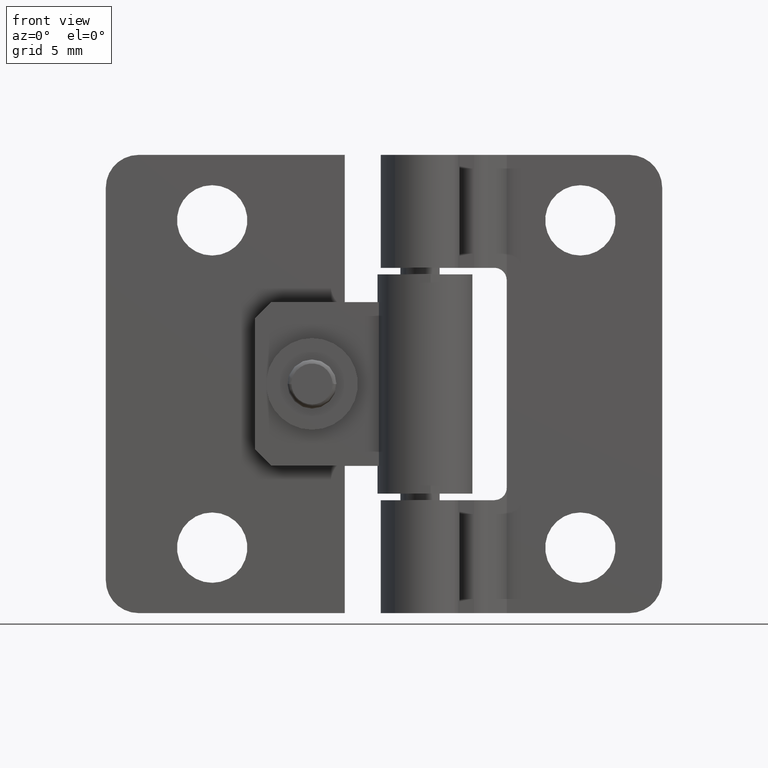
[diagram: clean part render]
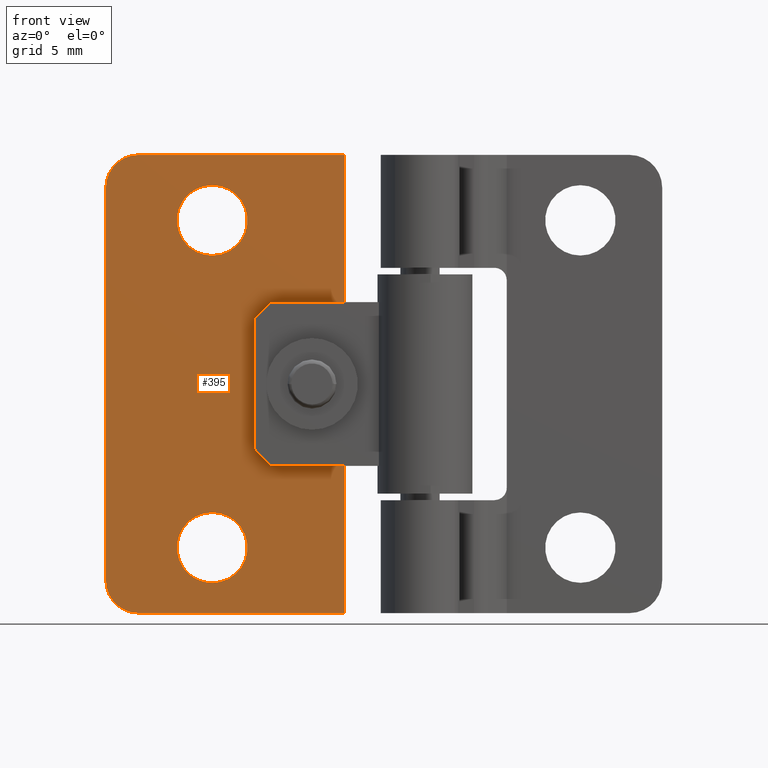
[diagram: same view with one face highlighted and labeled with its STEP entity id]
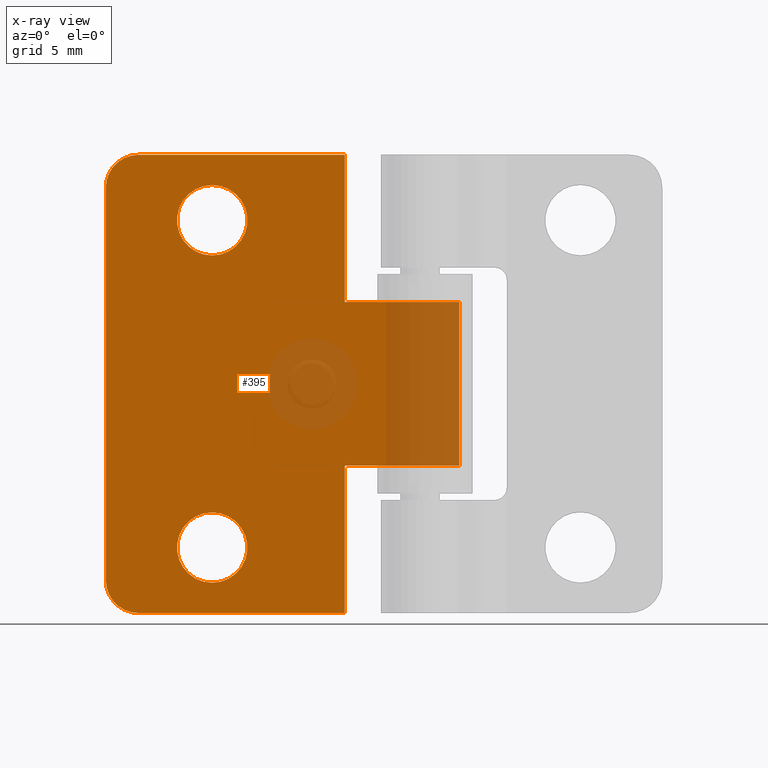
[diagram: x-ray of the same camera — body ghosted, the highlighted face saturated]
A machine part, front view. The second image highlights one B-rep face of the part: STEP entity #395.
The next image is the same camera in x-ray: the body ghosted, the highlighted face saturated — about 15% of this face is hidden behind the body in this view.
In plain terms, the highlighted planar face has unit normal (0, -1, 0).
Its self-contained STEP definition (entity closure, byte-faithful):
#395=ADVANCED_FACE('',(#1012,#1013,#1014),#1011,.T.);
#1011=PLANE('',#2232);
#1012=FACE_OUTER_BOUND('',#2233,.T.);
#1013=FACE_BOUND('',#2234,.T.);
#1014=FACE_BOUND('',#2235,.T.);
#2229=CARTESIAN_POINT('',(-2.16600000000E+01,3.10000000000E+00,3.08000000000E+01));
#2230=DIRECTION('',(0.00000000000E+00,-1.00000000000E+00,0.00000000000E+00));
#2231=DIRECTION('',(0.00000000000E+00,0.00000000000E+00,-1.00000000000E+00));
#2232=AXIS2_PLACEMENT_3D('',#2229,#2230,#2231);
#2233=EDGE_LOOP('',(#2945,#2946,#2947,#2948,#2949,#2950,#2951,#2952,#2953,#2954,#2955,#2956));
#2234=EDGE_LOOP('',(#2957,#2958,#2959));
#2235=EDGE_LOOP('',(#2960,#2961,#2962));
#2945=ORIENTED_EDGE('',*,*,#3566,.F.);
#2946=ORIENTED_EDGE('',*,*,#3562,.F.);
#2947=ORIENTED_EDGE('',*,*,#3599,.T.);
#2948=ORIENTED_EDGE('',*,*,#3600,.F.);
#2949=ORIENTED_EDGE('',*,*,#3601,.F.);
#2950=ORIENTED_EDGE('',*,*,#3573,.F.);
#2951=ORIENTED_EDGE('',*,*,#3569,.F.);
#2952=ORIENTED_EDGE('',*,*,#3584,.F.);
#2953=ORIENTED_EDGE('',*,*,#3578,.T.);
#2954=ORIENTED_EDGE('',*,*,#3589,.F.);
#2955=ORIENTED_EDGE('',*,*,#3582,.T.);
#2956=ORIENTED_EDGE('',*,*,#3586,.T.);
#2957=ORIENTED_EDGE('',*,*,#3602,.F.);
#2958=ORIENTED_EDGE('',*,*,#3603,.F.);
#2959=ORIENTED_EDGE('',*,*,#3604,.F.);
#2960=ORIENTED_EDGE('',*,*,#3605,.F.);
#2961=ORIENTED_EDGE('',*,*,#3606,.F.);
#2962=ORIENTED_EDGE('',*,*,#3607,.F.);
#3562=EDGE_CURVE('',#4659,#4660,#4661,.T.);
#3566=EDGE_CURVE('',#4660,#4687,#4688,.T.);
#3569=EDGE_CURVE('',#4707,#4708,#4709,.T.);
#3573=EDGE_CURVE('',#4708,#4735,#4736,.T.);
#3578=EDGE_CURVE('',#4770,#4763,#4771,.T.);
#3582=EDGE_CURVE('',#4798,#4791,#4799,.T.);
#3584=EDGE_CURVE('',#4770,#4707,#4811,.T.);
#3586=EDGE_CURVE('',#4791,#4687,#4823,.T.);
#3589=EDGE_CURVE('',#4798,#4763,#4841,.T.);
#3599=EDGE_CURVE('',#4659,#4907,#4908,.T.);
#3600=EDGE_CURVE('',#4914,#4907,#4915,.T.);
#3601=EDGE_CURVE('',#4735,#4914,#4921,.T.);
#3602=EDGE_CURVE('',#4927,#4928,#4929,.T.);
#3603=EDGE_CURVE('',#4935,#4927,#4936,.T.);
#3604=EDGE_CURVE('',#4928,#4935,#4942,.T.);
#3605=EDGE_CURVE('',#4948,#4949,#4950,.T.);
#3606=EDGE_CURVE('',#4956,#4948,#4957,.T.);
#3607=EDGE_CURVE('',#4949,#4956,#4963,.T.);
#4659=VERTEX_POINT('',#6954);
#4660=VERTEX_POINT('',#6955);
#4661=LINE('',#6956,#6957);
#4687=VERTEX_POINT('',#6970);
#4688=LINE('',#6971,#6972);
#4707=VERTEX_POINT('',#6981);
#4708=VERTEX_POINT('',#6982);
#4709=LINE('',#6983,#6984);
#4735=VERTEX_POINT('',#6997);
#4736=LINE('',#6998,#6999);
#4763=VERTEX_POINT('',#7014);
#4770=VERTEX_POINT('',#7018);
#4771=CIRCLE('',#7022,2.00000000000E+00);
#4791=VERTEX_POINT('',#7032);
#4798=VERTEX_POINT('',#7036);
#4799=CIRCLE('',#7040,2.00000000000E+00);
#4811=LINE('',#7044,#7045);
#4823=LINE('',#7050,#7051);
#4841=LINE('',#7059,#7060);
#4907=VERTEX_POINT('',#7101);
#4908=LINE('',#7102,#7103);
#4914=VERTEX_POINT('',#7105);
#4915=LINE('',#7106,#7107);
#4921=LINE('',#7109,#7110);
#4927=VERTEX_POINT('',#7112);
#4928=VERTEX_POINT('',#7113);
#4929=CIRCLE('',#7117,2.15000000000E+00);
#4935=VERTEX_POINT('',#7118);
#4936=CIRCLE('',#7122,2.15000000000E+00);
#4942=CIRCLE('',#7126,2.15000000000E+00);
#4948=VERTEX_POINT('',#7127);
#4949=VERTEX_POINT('',#7128);
#4950=CIRCLE('',#7132,2.15000000000E+00);
#4956=VERTEX_POINT('',#7133);
#4957=CIRCLE('',#7137,2.15000000000E+00);
#4963=CIRCLE('',#7141,2.15000000000E+00);
#6954=CARTESIAN_POINT('',(-2.90000000000E+00,3.10000000000E+00,9.00000000000E+00));
#6955=CARTESIAN_POINT('',(-4.90000000000E+00,3.10000000000E+00,9.00000000000E+00));
#6956=CARTESIAN_POINT('',(-2.90000000000E+00,3.10000000000E+00,9.00000000000E+00));
#6957=VECTOR('',#6958,2.00000000000E+00);
#6958=DIRECTION('',(-1.00000000000E+00,0.00000000000E+00,0.00000000000E+00));
#6970=CARTESIAN_POINT('',(-4.90000000000E+00,3.10000000000E+00,0.00000000000E+00));
#6971=CARTESIAN_POINT('',(-4.90000000000E+00,3.10000000000E+00,9.00000000000E+00));
#6972=VECTOR('',#6973,9.00000000000E+00);
#6973=DIRECTION('',(0.00000000000E+00,0.00000000000E+00,-1.00000000000E+00));
#6981=CARTESIAN_POINT('',(-4.90000000000E+00,3.10000000000E+00,2.80000000000E+01));
#6982=CARTESIAN_POINT('',(-4.90000000000E+00,3.10000000000E+00,1.90000000000E+01));
#6983=CARTESIAN_POINT('',(-4.90000000000E+00,3.10000000000E+00,2.80000000000E+01));
#6984=VECTOR('',#6985,9.00000000000E+00);
#6985=DIRECTION('',(0.00000000000E+00,0.00000000000E+00,-1.00000000000E+00));
#6997=CARTESIAN_POINT('',(-2.90000000000E+00,3.10000000000E+00,1.90000000000E+01));
#6998=CARTESIAN_POINT('',(-4.90000000000E+00,3.10000000000E+00,1.90000000000E+01));
#6999=VECTOR('',#7000,2.00000000000E+00);
#7000=DIRECTION('',(1.00000000000E+00,0.00000000000E+00,0.00000000000E+00));
#7014=CARTESIAN_POINT('',(-1.95000000000E+01,3.10000000000E+00,2.60000000000E+01));
#7018=CARTESIAN_POINT('',(-1.75000000000E+01,3.10000000000E+00,2.80000000000E+01));
#7019=CARTESIAN_POINT('',(-1.75000000000E+01,3.10000000000E+00,2.60000000000E+01));
#7020=DIRECTION('',(3.92523114671E-16,-1.00000000000E+00,-1.39452223874E-30));
#7021=DIRECTION('',(-3.55271367880E-15,-0.00000000000E+00,-1.00000000000E+00));
#7022=AXIS2_PLACEMENT_3D('',#7019,#7020,#7021);
#7032=CARTESIAN_POINT('',(-1.75000000000E+01,3.10000000000E+00,0.00000000000E+00));
#7036=CARTESIAN_POINT('',(-1.95000000000E+01,3.10000000000E+00,2.00000000000E+00));
#7037=CARTESIAN_POINT('',(-1.75000000000E+01,3.10000000000E+00,2.00000000000E+00));
#7038=DIRECTION('',(1.48167987866E-30,-1.00000000000E+00,3.92523114671E-16));
#7039=DIRECTION('',(1.00000000000E+00,-0.00000000000E+00,-3.77475828373E-15));
#7040=AXIS2_PLACEMENT_3D('',#7037,#7038,#7039);
#7044=CARTESIAN_POINT('',(-1.75000000000E+01,3.10000000000E+00,2.80000000000E+01));
#7045=VECTOR('',#7046,1.26000000000E+01);
#7046=DIRECTION('',(1.00000000000E+00,0.00000000000E+00,0.00000000000E+00));
#7050=CARTESIAN_POINT('',(-1.75000000000E+01,3.10000000000E+00,0.00000000000E+00));
#7051=VECTOR('',#7052,1.26000000000E+01);
#7052=DIRECTION('',(1.00000000000E+00,0.00000000000E+00,0.00000000000E+00));
#7059=CARTESIAN_POINT('',(-1.95000000000E+01,3.10000000000E+00,2.00000000000E+00));
#7060=VECTOR('',#7061,2.40000000000E+01);
#7061=DIRECTION('',(0.00000000000E+00,0.00000000000E+00,1.00000000000E+00));
#7101=CARTESIAN_POINT('',(2.10000000000E+00,3.10000000000E+00,9.00000000000E+00));
#7102=CARTESIAN_POINT('',(-2.90000000000E+00,3.10000000000E+00,9.00000000000E+00));
#7103=VECTOR('',#7104,5.00000000000E+00);
#7104=DIRECTION('',(1.00000000000E+00,0.00000000000E+00,0.00000000000E+00));
#7105=CARTESIAN_POINT('',(2.10000000000E+00,3.10000000000E+00,1.90000000000E+01));
#7106=CARTESIAN_POINT('',(2.10000000000E+00,3.10000000000E+00,1.90000000000E+01));
#7107=VECTOR('',#7108,1.00000000000E+01);
#7108=DIRECTION('',(0.00000000000E+00,0.00000000000E+00,-1.00000000000E+00));
#7109=CARTESIAN_POINT('',(-2.90000000000E+00,3.10000000000E+00,1.90000000000E+01));
#7110=VECTOR('',#7111,5.00000000000E+00);
#7111=DIRECTION('',(1.00000000000E+00,0.00000000000E+00,0.00000000000E+00));
#7112=CARTESIAN_POINT('',(-1.08650294255E+01,3.10000000000E+00,2.37462271762E+01));
#7113=CARTESIAN_POINT('',(-1.30000000000E+01,3.10000000000E+00,2.61500000000E+01));
#7114=CARTESIAN_POINT('',(-1.30000000000E+01,3.10000000000E+00,2.40000000000E+01));
#7115=DIRECTION('',(-1.31705028936E-15,-1.00000000000E+00,-9.33028184860E-15));
#7116=DIRECTION('',(2.62012633812E-14,-9.33028184860E-15,1.00000000000E+00));
#7117=AXIS2_PLACEMENT_3D('',#7114,#7115,#7116);
#7118=CARTESIAN_POINT('',(-1.51349265884E+01,3.10000000000E+00,2.42541426016E+01));
#7119=CARTESIAN_POINT('',(-1.30000000000E+01,3.10000000000E+00,2.40000000000E+01));
#7120=DIRECTION('',(-1.31705028936E-15,-1.00000000000E+00,-9.33028184860E-15));
#7121=DIRECTION('',(2.62012633812E-14,-9.33028184860E-15,1.00000000000E+00));
#7122=AXIS2_PLACEMENT_3D('',#7119,#7120,#7121);
#7123=CARTESIAN_POINT('',(-1.30000000000E+01,3.10000000000E+00,2.40000000000E+01));
#7124=DIRECTION('',(-1.31705028936E-15,-1.00000000000E+00,-9.33028184860E-15));
#7125=DIRECTION('',(2.62012633812E-14,-9.33028184860E-15,1.00000000000E+00));
#7126=AXIS2_PLACEMENT_3D('',#7123,#7124,#7125);
#7127=CARTESIAN_POINT('',(-1.08650294255E+01,3.10000000000E+00,3.74622717623E+00));
#7128=CARTESIAN_POINT('',(-1.30000000000E+01,3.10000000000E+00,6.15000000000E+00));
#7129=CARTESIAN_POINT('',(-1.30000000000E+01,3.10000000000E+00,4.00000000000E+00));
#7130=DIRECTION('',(3.81030245150E-16,-1.00000000000E+00,4.95551994375E-15));
#7131=DIRECTION('',(2.27179386414E-14,4.95551994375E-15,1.00000000000E+00));
#7132=AXIS2_PLACEMENT_3D('',#7129,#7130,#7131);
#7133=CARTESIAN_POINT('',(-1.51349265884E+01,3.10000000000E+00,4.25414260158E+00));
#7134=CARTESIAN_POINT('',(-1.30000000000E+01,3.10000000000E+00,4.00000000000E+00));
#7135=DIRECTION('',(3.81030245150E-16,-1.00000000000E+00,4.95551994375E-15));
#7136=DIRECTION('',(2.27179386414E-14,4.95551994375E-15,1.00000000000E+00));
#7137=AXIS2_PLACEMENT_3D('',#7134,#7135,#7136);
#7138=CARTESIAN_POINT('',(-1.30000000000E+01,3.10000000000E+00,4.00000000000E+00));
#7139=DIRECTION('',(3.81030245150E-16,-1.00000000000E+00,4.95551994375E-15));
#7140=DIRECTION('',(2.27179386414E-14,4.95551994375E-15,1.00000000000E+00));
#7141=AXIS2_PLACEMENT_3D('',#7138,#7139,#7140);